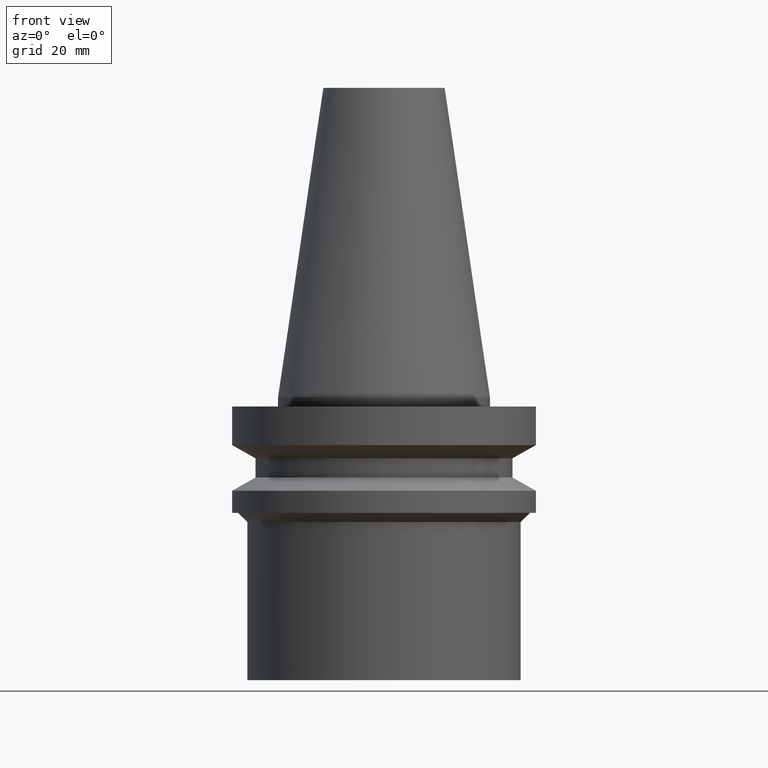
[diagram: clean part render]
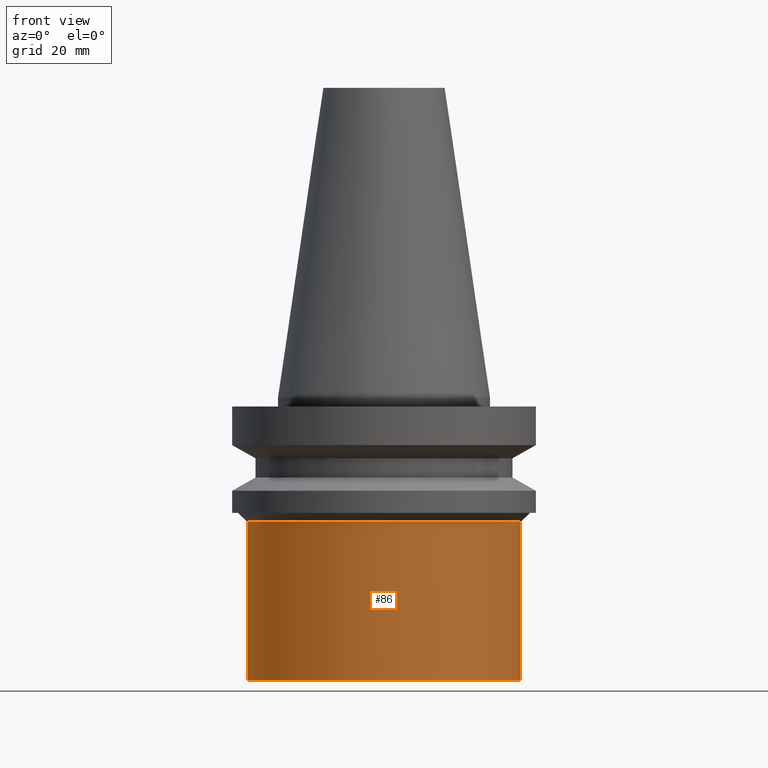
[diagram: same view with one face highlighted and labeled with its STEP entity id]
A machine part, front view. The second image highlights one B-rep face of the part: STEP entity #86.
In plain terms, the highlighted cylindrical surface (bore or boss wall) has radius 45 mm, axis along (-0, -0, 1).
Its self-contained STEP definition (entity closure, byte-faithful):
#86=ADVANCED_FACE('',(#121,#122),#123,.T.);
#121=FACE_BOUND('',#158,.T.);
#122=FACE_BOUND('',#159,.T.);
#123=CYLINDRICAL_SURFACE('',#160,45.0);
#158=EDGE_LOOP('',(#217));
#159=EDGE_LOOP('',(#218));
#160=AXIS2_PLACEMENT_3D('',#219,#220,#221);
#217=ORIENTED_EDGE('',*,*,#237,.F.);
#218=ORIENTED_EDGE('',*,*,#236,.T.);
#219=CARTESIAN_POINT('',(4.10256677714363E-015,8.20513355428726E-015,-67.0));
#220=DIRECTION('',(-6.12323399573677E-017,-1.22464679914729E-016,1.0));
#221=DIRECTION('',(-1.23259516440783E-032,1.0,1.22464679914729E-016));
#236=EDGE_CURVE('',#258,#258,#259,.T.);
#237=EDGE_CURVE('',#260,#260,#261,.T.);
#258=VERTEX_POINT('',#282);
#259=CIRCLE('',#283,45.0);
#260=VERTEX_POINT('',#284);
#261=CIRCLE('',#285,45.0);
#282=CARTESIAN_POINT('',(2.51052593825207E-015,45.0,-41.0));
#283=AXIS2_PLACEMENT_3D('',#316,#317,#318);
#284=CARTESIAN_POINT('',(5.69460761603519E-015,45.0,-93.0));
#285=AXIS2_PLACEMENT_3D('',#319,#320,#321);
#316=CARTESIAN_POINT('',(2.51052593825207E-015,5.02105187650415E-015,-41.0));
#317=DIRECTION('',(6.12323399573677E-017,1.22464679914729E-016,-1.0));
#318=DIRECTION('',(-1.23259516440783E-032,1.0,1.22464679914729E-016));
#319=CARTESIAN_POINT('',(5.69460761603519E-015,1.13892152320704E-014,-93.0));
#320=DIRECTION('',(6.12323399573677E-017,1.22464679914729E-016,-1.0));
#321=DIRECTION('',(-1.23259516440783E-032,1.0,1.22464679914729E-016));